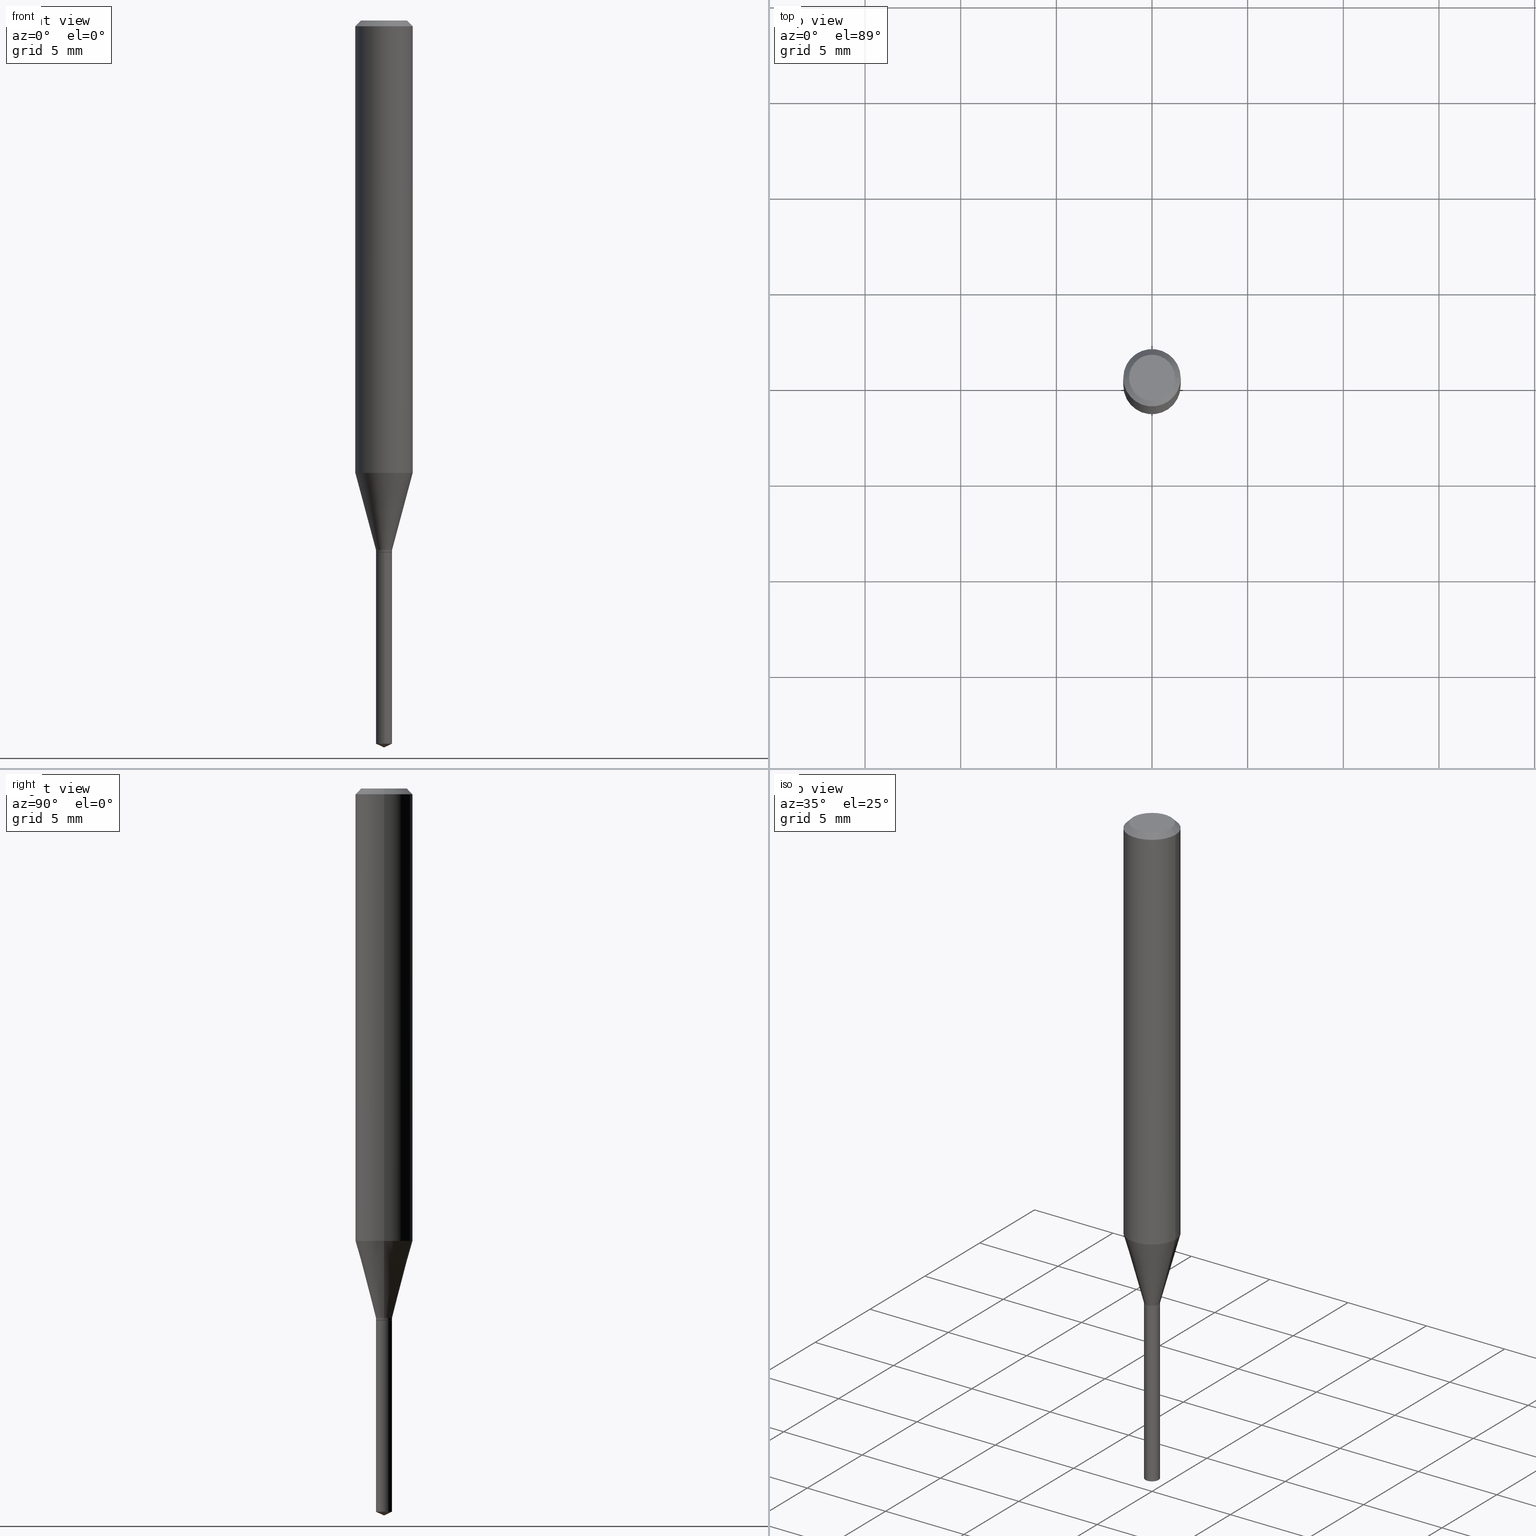
[diagram: canonical four-view strip — front | top / right | iso, engineering-drawing reading convention]
A machine part, canonical four-view strip (front | top / right | iso — engineering-drawing reading convention). The complete STEP part file that produces these views, byte-faithful:
ISO-10303-21;
HEADER;
FILE_DESCRIPTION (( 'STEP AP203' ),
    '1' );
FILE_NAME ('08310.STEP',
    '2024-04-24T14:14:55',
    ( '' ),
    ( '' ),
    'SwSTEP 2.0',
    'SolidWorks 2023',
    '' );
FILE_SCHEMA (( 'CONFIG_CONTROL_DESIGN' ));
ENDSEC;

DATA;
#1 = DIRECTION ( 'NONE',  ( 1.000000000000000000, -6.982962677686268288E-15, 0.000000000000000000 ) ) ;
#2 = APPROVAL ( #225, 'UNSPECIFIED' ) ;
#3 = ORGANIZATION ( 'UNSPECIFIED', 'UNSPECIFIED', '' ) ;
#4 = CIRCLE ( 'NONE', #134, 0.04724000000000000421 ) ;
#5 = CARTESIAN_POINT ( 'NONE',  ( 0.05904999999999999832, -4.535783407291118600E-16, -0.01181000000000006871 ) ) ;
#6 = LOCAL_TIME ( 10, 14, 55.00000000000000000, #240 ) ;
#7 = FACE_OUTER_BOUND ( 'NONE', #132, .T. ) ;
#8 = ORIENTED_EDGE ( 'NONE', *, *, #353, .F. ) ;
#9 = COORDINATED_UNIVERSAL_TIME_OFFSET ( 5, 0, .BEHIND. ) ;
#10 = VERTEX_POINT ( 'NONE', #218 ) ;
#11 = FACE_OUTER_BOUND ( 'NONE', #466, .T. ) ;
#12 = VERTEX_POINT ( 'NONE', #72 ) ;
#13 = PERSON_AND_ORGANIZATION ( #419, #3 ) ;
#14 = DIRECTION ( 'NONE',  ( -2.445468806185136597E-29, 3.491481338843145583E-15, 1.000000000000000000 ) ) ;
#15 = EDGE_LOOP ( 'NONE', ( #52, #312, #111 ) ) ;
#16 = VERTEX_POINT ( 'NONE', #337 ) ;
#17 = EDGE_CURVE ( 'NONE', #381, #122, #156, .T. ) ;
#18 = ORIENTED_EDGE ( 'NONE', *, *, #424, .T. ) ;
#19 = CARTESIAN_POINT ( 'NONE',  ( -0.05904999999999999832, 3.711095515056362547E-16, -0.01181000000000006871 ) ) ;
#20 = AXIS2_PLACEMENT_3D ( 'NONE', #68, #125, #269 ) ;
#21 = DIRECTION ( 'NONE',  ( -2.445468806185136597E-29, 3.491481338843145583E-15, 1.000000000000000000 ) ) ;
#22 = EDGE_LOOP ( 'NONE', ( #236, #323, #171, #389 ) ) ;
#23 = FACE_OUTER_BOUND ( 'NONE', #469, .T. ) ;
#24 = CARTESIAN_POINT ( 'NONE',  ( 2.676565608369632355E-29, -3.821426325363822773E-15, -1.094500000000000028 ) ) ;
#25 = CARTESIAN_POINT ( 'NONE',  ( 2.888098660104663328E-31, -4.123439461173779030E-17, -0.01181000000000006871 ) ) ;
#26 = APPLICATION_CONTEXT ( 'configuration controlled 3d designs of mechanical parts and assemblies' ) ;
#27 = CYLINDRICAL_SURFACE ( 'NONE', #464, 0.05905000000000005383 ) ;
#28 = DIRECTION ( 'NONE',  ( -2.445468806185136877E-29, 3.491481338843145188E-15, 1.000000000000000000 ) ) ;
#29 = ADVANCED_FACE ( 'NONE', ( #11 ), #115, .T. ) ;
#30 = EDGE_CURVE ( 'NONE', #327, #12, #407, .T. ) ;
#31 = DIRECTION ( 'NONE',  ( 1.000000000000000000, -6.982962677686268288E-15, 4.876176775795936353E-29 ) ) ;
#32 = DIRECTION ( 'NONE',  ( 6.439704144417024831E-15, 0.9063077870366513800, 0.4226182617406963327 ) ) ;
#33 = VERTEX_POINT ( 'NONE', #462 ) ;
#34 = DIRECTION ( 'NONE',  ( -2.445468806185136597E-29, 3.491481338843145583E-15, 1.000000000000000000 ) ) ;
#35 = AXIS2_PLACEMENT_3D ( 'NONE', #272, #475, #481 ) ;
#36 = ADVANCED_FACE ( 'NONE', ( #461 ), #259, .T. ) ;
#37 = DIRECTION ( 'NONE',  ( -6.982962677686267499E-15, -1.000000000000000000, 3.520397390770469253E-15 ) ) ;
#38 = AXIS2_PLACEMENT_3D ( 'NONE', #431, #442, #167 ) ;
#39 = ORIENTED_EDGE ( 'NONE', *, *, #353, .T. ) ;
#40 = CARTESIAN_POINT ( 'NONE',  ( 0.05904999999999999832, -4.463468013801466955E-16, -0.01181000000000006871 ) ) ;
#41 = FACE_OUTER_BOUND ( 'NONE', #146, .T. ) ;
#42 = CIRCLE ( 'NONE', #114, 0.01654999999999999874 ) ;
#43 = VECTOR ( 'NONE', #386, 39.37007874015748143 ) ;
#44 = CARTESIAN_POINT ( 'NONE',  ( 2.676565608369631794E-29, -3.821426325363822773E-15, -1.094499999999999806 ) ) ;
#45 = EDGE_CURVE ( 'NONE', #320, #86, #117, .T. ) ;
#46 = DIRECTION ( 'NONE',  ( 1.000000000000000000, -6.982962677686263555E-15, 0.000000000000000000 ) ) ;
#47 = DIRECTION ( 'NONE',  ( -2.445468806185136597E-29, 3.491481338843145583E-15, 1.000000000000000000 ) ) ;
#48 = AXIS2_PLACEMENT_3D ( 'NONE', #434, #473, #238 ) ;
#49 = EDGE_CURVE ( 'NONE', #264, #16, #367, .T. ) ;
#50 = AXIS2_PLACEMENT_3D ( 'NONE', #44, #187, #335 ) ;
#51 = ORIENTED_EDGE ( 'NONE', *, *, #331, .T. ) ;
#52 = ORIENTED_EDGE ( 'NONE', *, *, #246, .F. ) ;
#53 = AXIS2_PLACEMENT_3D ( 'NONE', #296, #375, #46 ) ;
#54 = AXIS2_PLACEMENT_3D ( 'NONE', #24, #360, #205 ) ;
#55 = PRODUCT_DEFINITION ( 'UNKNOWN', '', #90, #370 ) ;
#56 = CARTESIAN_POINT ( 'NONE',  ( 2.664338264338706022E-29, -3.803968918669606949E-15, -1.089499999999999913 ) ) ;
#57 = VERTEX_POINT ( 'NONE', #262 ) ;
#58 = APPLICATION_PROTOCOL_DEFINITION ( 'international standard', 'config_control_design', 1994, #26 ) ;
#59 = CARTESIAN_POINT ( 'NONE',  ( 3.658653776152657051E-29, -5.223622565778476142E-15, -1.496099999999999985 ) ) ;
#60 = ORIENTED_EDGE ( 'NONE', *, *, #97, .F. ) ;
#61 = DIRECTION ( 'NONE',  ( 1.000000000000000000, -6.982962677686268288E-15, 0.000000000000000000 ) ) ;
#62 = CARTESIAN_POINT ( 'NONE',  ( 0.01654999999999999874, -3.919536950985314429E-15, -1.089499999999999913 ) ) ;
#63 = EDGE_CURVE ( 'NONE', #232, #12, #257, .T. ) ;
#64 = AXIS2_PLACEMENT_3D ( 'NONE', #403, #34, #430 ) ;
#65 = AXIS2_PLACEMENT_3D ( 'NONE', #293, #452, #220 ) ;
#66 = CARTESIAN_POINT ( 'NONE',  ( 0.01654999999999999527, -1.155680323157077024E-16, 8.070072563942271930E-31 ) ) ;
#67 = CARTESIAN_POINT ( 'NONE',  ( 2.676565608369631794E-29, -3.821426325363822773E-15, -1.094499999999999806 ) ) ;
#68 = CARTESIAN_POINT ( 'NONE',  ( 4.132873053354867254E-48, -5.900647395337818946E-34, -1.690012582823346072E-19 ) ) ;
#69 = LINE ( 'NONE', #363, #120 ) ;
#70 = CYLINDRICAL_SURFACE ( 'NONE', #488, 0.01654999999999999527 ) ;
#71 = CIRCLE ( 'NONE', #387, 0.01604999999999999830 ) ;
#72 = CARTESIAN_POINT ( 'NONE',  ( -0.01654999999999999527, -3.694229928913707069E-15, -1.093999999999999861 ) ) ;
#73 = CALENDAR_DATE ( 2024, 24, 4 ) ;
#74 = CARTESIAN_POINT ( 'NONE',  ( -0.01654999999999999874, -3.686374095901309909E-15, -1.089499999999999913 ) ) ;
#75 = EDGE_CURVE ( 'NONE', #445, #327, #76, .T. ) ;
#76 = LINE ( 'NONE', #418, #253 ) ;
#77 = ADVANCED_FACE ( 'NONE', ( #219 ), #380, .T. ) ;
#78 = CC_DESIGN_APPROVAL ( #2, ( #90 ) ) ;
#79 = AXIS2_PLACEMENT_3D ( 'NONE', #369, #14, #408 ) ;
#80 = ORIENTED_EDGE ( 'NONE', *, *, #277, .T. ) ;
#81 = DATE_TIME_ROLE ( 'creation_date' ) ;
#82 = DIRECTION ( 'NONE',  ( -0.7071067811864237829, 7.493145998869907665E-15, 0.7071067811866712516 ) ) ;
#83 = EDGE_CURVE ( 'NONE', #381, #264, #435, .T. ) ;
#84 = VECTOR ( 'NONE', #490, 39.37007874015748143 ) ;
#85 = CIRCLE ( 'NONE', #48, 0.05905000000000010935 ) ;
#86 = VERTEX_POINT ( 'NONE', #5 ) ;
#87 = ORIENTED_EDGE ( 'NONE', *, *, #344, .T. ) ;
#88 = LENGTH_MEASURE_WITH_UNIT ( LENGTH_MEASURE( 0.02539999999999999897 ), #451 );
#89 = CARTESIAN_POINT ( 'NONE',  ( -0.05905000000000005383, 4.195754854663395423E-16, -2.904631170795524694E-30 ) ) ;
#90 = PRODUCT_DEFINITION_FORMATION_WITH_SPECIFIED_SOURCE ( 'ANY', '', #157, .NOT_KNOWN. ) ;
#91 = PERSON_AND_ORGANIZATION ( #419, #3 ) ;
#92 = DIRECTION ( 'NONE',  ( 1.000000000000000000, -6.982962677686266711E-15, 0.000000000000000000 ) ) ;
#93 = ORIENTED_EDGE ( 'NONE', *, *, #277, .F. ) ;
#94 = ORIENTED_EDGE ( 'NONE', *, *, #121, .F. ) ;
#95 = DIRECTION ( 'NONE',  ( -2.445468806185136597E-29, 3.491481338843145583E-15, 1.000000000000000000 ) ) ;
#96 = DIRECTION ( 'NONE',  ( -2.445468806185136597E-29, 3.491481338843145583E-15, 1.000000000000000000 ) ) ;
#97 = EDGE_CURVE ( 'NONE', #33, #86, #254, .T. ) ;
#98 = CARTESIAN_POINT ( 'NONE',  ( 3.658653776152655930E-29, -5.223622565778476142E-15, -1.496099999999999985 ) ) ;
#99 = FACE_OUTER_BOUND ( 'NONE', #22, .T. ) ;
#100 = CLOSED_SHELL ( 'NONE', ( #404, #287, #131, #149, #133 ) ) ;
#101 = DIRECTION ( 'NONE',  ( -2.445460715294871217E-29, 3.491492925458510144E-15, 1.000000000000000000 ) ) ;
#102 = DATE_AND_TIME ( #73, #355 ) ;
#103 = CARTESIAN_POINT ( 'NONE',  ( 0.05905000000000005383, -4.123439461173744271E-16, 2.879382386107502672E-30 ) ) ;
#104 = DIRECTION ( 'NONE',  ( 1.000000000000000000, -6.982962677686266711E-15, 4.876176775795935793E-29 ) ) ;
#105 = CC_DESIGN_PERSON_AND_ORGANIZATION_ASSIGNMENT ( #271, #124, ( #90 ) ) ;
#106 = FACE_OUTER_BOUND ( 'NONE', #15, .T. ) ;
#107 = AXIS2_PLACEMENT_3D ( 'NONE', #487, #177, #250 ) ;
#108 = CARTESIAN_POINT ( 'NONE',  ( 1.175948227683330073E-16, 0.01654999999999617541, -1.094499999999999806 ) ) ;
#109 = ADVANCED_FACE ( 'NONE', ( #41 ), #291, .F. ) ;
#110 = CARTESIAN_POINT ( 'NONE',  ( -9.261931828548885815E-28, 1.322367415117763772E-13, 37.87397874015748300 ) ) ;
#111 = ORIENTED_EDGE ( 'NONE', *, *, #410, .F. ) ;
#112 = CARTESIAN_POINT ( 'NONE',  ( -0.01604999999999999830, -3.707384216274326632E-15, -1.094500000000000028 ) ) ;
#113 = DATE_AND_TIME ( #298, #372 ) ;
#114 = AXIS2_PLACEMENT_3D ( 'NONE', #241, #345, #397 ) ;
#115 = CONICAL_SURFACE ( 'NONE', #283, 0.05904999999999999832, 0.7853981633974452814 ) ;
#116 = AXIS2_PLACEMENT_3D ( 'NONE', #319, #349, #444 ) ;
#117 = LINE ( 'NONE', #40, #486 ) ;
#118 = ORIENTED_EDGE ( 'NONE', *, *, #412, .F. ) ;
#119 = ORIENTED_EDGE ( 'NONE', *, *, #344, .F. ) ;
#120 = VECTOR ( 'NONE', #32, 39.37007874015748854 ) ;
#121 = EDGE_CURVE ( 'NONE', #122, #16, #417, .T. ) ;
#122 = VERTEX_POINT ( 'NONE', #371 ) ;
#123 = EDGE_LOOP ( 'NONE', ( #346, #118, #310, #432 ) ) ;
#124 = PERSON_AND_ORGANIZATION_ROLE ( 'design_supplier' ) ;
#125 = DIRECTION ( 'NONE',  ( 2.438088387897960049E-29, -3.491481338843145188E-15, -1.000000000000000000 ) ) ;
#126 = ORIENTED_EDGE ( 'NONE', *, *, #190, .T. ) ;
#127 = DIRECTION ( 'NONE',  ( 0.000000000000000000, 0.000000000000000000, 1.000000000000000000 ) ) ;
#128 = DIRECTION ( 'NONE',  ( 1.000000000000000000, -6.982962677686266711E-15, 4.876176775795935793E-29 ) ) ;
#129 = VERTEX_POINT ( 'NONE', #108 ) ;
#130 = FACE_OUTER_BOUND ( 'NONE', #395, .T. ) ;
#131 = ADVANCED_FACE ( 'NONE', ( #106 ), #374, .T. ) ;
#132 = EDGE_LOOP ( 'NONE', ( #8, #263, #303, #379 ) ) ;
#133 = ADVANCED_FACE ( 'NONE', ( #256 ), #413, .F. ) ;
#134 = AXIS2_PLACEMENT_3D ( 'NONE', #242, #357, #280 ) ;
#135 = CARTESIAN_POINT ( 'NONE',  ( 8.265746106709734507E-48, -1.180129479067563789E-33, -3.380025165646692144E-19 ) ) ;
#136 = COORDINATED_UNIVERSAL_TIME_OFFSET ( 5, 0, .BEHIND. ) ;
#137 = LINE ( 'NONE', #59, #43 ) ;
#138 = ORIENTED_EDGE ( 'NONE', *, *, #294, .F. ) ;
#139 = CARTESIAN_POINT ( 'NONE',  ( -0.01604999999999999830, -3.704734989100215431E-15, -1.094500000000000028 ) ) ;
#140 = DIRECTION ( 'NONE',  ( -2.445468806185136597E-29, 3.491481338843145583E-15, 1.000000000000000000 ) ) ;
#141 = CARTESIAN_POINT ( 'NONE',  ( 0.000000000000000000, 0.000000000000000000, 0.000000000000000000 ) ) ;
#142 = AXIS2_PLACEMENT_3D ( 'NONE', #328, #47, #1 ) ;
#143 = VECTOR ( 'NONE', #234, 39.37007874015748143 ) ;
#144 = CARTESIAN_POINT ( 'NONE',  ( -0.01654999999999999527, 1.175948227682965472E-16, -8.140837574371866824E-31 ) ) ;
#145 = CC_DESIGN_PERSON_AND_ORGANIZATION_ASSIGNMENT ( #318, #471, ( #235 ) ) ;
#146 = EDGE_LOOP ( 'NONE', ( #239, #437 ) ) ;
#147 = CARTESIAN_POINT ( 'NONE',  ( -9.261931828548885815E-28, 1.322367415117763772E-13, 37.87397874015748300 ) ) ;
#148 = DIRECTION ( 'NONE',  ( -0.2588190451025213501, 5.211531920934551042E-15, 0.9659258262890682012 ) ) ;
#149 = ADVANCED_FACE ( 'NONE', ( #7 ), #155, .T. ) ;
#150 = APPROVAL_PERSON_ORGANIZATION ( #13, #2, #340 ) ;
#151 = APPROVAL_DATE_TIME ( #102, #398 ) ;
#152 = AXIS2_PLACEMENT_3D ( 'NONE', #211, #406, #104 ) ;
#153 = DIRECTION ( 'NONE',  ( 0.7071067811865453523, -7.319954787623248157E-15, -0.7071067811865496822 ) ) ;
#154 = PERSON_AND_ORGANIZATION_ROLE ( 'creator' ) ;
#155 = CYLINDRICAL_SURFACE ( 'NONE', #285, 0.01654999999999999874 ) ;
#156 = LINE ( 'NONE', #255, #339 ) ;
#157 = PRODUCT ( '08310', '08310', '', ( #433 ) ) ;
#158 = VECTOR ( 'NONE', #248, 39.37007874015748143 ) ;
#159 = EDGE_LOOP ( 'NONE', ( #196, #347, #94, #210 ) ) ;
#160 = ORIENTED_EDGE ( 'NONE', *, *, #409, .T. ) ;
#161 = ADVANCED_FACE ( 'NONE', ( #276 ), #179, .T. ) ;
#162 = ADVANCED_FACE ( 'NONE', ( #130 ), #70, .T. ) ;
#163 = APPROVAL_DATE_TIME ( #348, #448 ) ;
#164 = ORIENTED_EDGE ( 'NONE', *, *, #246, .T. ) ;
#165 = LINE ( 'NONE', #19, #84 ) ;
#166 = VERTEX_POINT ( 'NONE', #98 ) ;
#167 = DIRECTION ( 'NONE',  ( 1.000000000000000000, -6.982962677686266711E-15, 0.000000000000000000 ) ) ;
#168 = CARTESIAN_POINT ( 'NONE',  ( -0.04724000000000000421, 3.504923541997677355E-16, -3.380025165670481712E-19 ) ) ;
#169 = APPROVAL_DATE_TIME ( #173, #2 ) ;
#170 = CARTESIAN_POINT ( 'NONE',  ( 3.639790053301312360E-29, -5.196664665556151935E-15, -1.488382608257534656 ) ) ;
#171 = ORIENTED_EDGE ( 'NONE', *, *, #83, .F. ) ;
#172 = VECTOR ( 'NONE', #175, 39.37007874015748143 ) ;
#173 = DATE_AND_TIME ( #396, #6 ) ;
#174 = FACE_OUTER_BOUND ( 'NONE', #405, .T. ) ;
#175 = DIRECTION ( 'NONE',  ( -2.445468806185136877E-29, 3.491481338843145188E-15, 1.000000000000000000 ) ) ;
#176 = CARTESIAN_POINT ( 'NONE',  ( 0.01604999999999999830, -3.933502876340687247E-15, -1.094500000000000028 ) ) ;
#177 = DIRECTION ( 'NONE',  ( -2.445460715294871217E-29, 3.491492925458510144E-15, 1.000000000000000000 ) ) ;
#178 = ADVANCED_FACE ( 'NONE', ( #436 ), #316, .T. ) ;
#179 = CYLINDRICAL_SURFACE ( 'NONE', #152, 0.05905000000000005383 ) ;
#180 = VECTOR ( 'NONE', #484, 39.37007874015748143 ) ;
#181 = DIRECTION ( 'NONE',  ( -6.982962677686266711E-15, -1.000000000000000000, 0.000000000000000000 ) ) ;
#182 = DIRECTION ( 'NONE',  ( -1.000000000000000000, 6.982962677686266711E-15, 0.000000000000000000 ) ) ;
#183 = DIRECTION ( 'NONE',  ( 1.000000000000000000, -6.982962677686267499E-15, 0.000000000000000000 ) ) ;
#184 = CC_DESIGN_APPROVAL ( #398, ( #55 ) ) ;
#185 = CIRCLE ( 'NONE', #260, 0.01654999999999999527 ) ;
#186 = APPROVAL_STATUS ( 'not_yet_approved' ) ;
#187 = DIRECTION ( 'NONE',  ( 2.445460715294871217E-29, -3.491492925458510144E-15, -1.000000000000000000 ) ) ;
#188 = ORIENTED_EDGE ( 'NONE', *, *, #412, .T. ) ;
#189 = CARTESIAN_POINT ( 'NONE',  ( 2.664338264338706022E-29, -3.803968918669606949E-15, -1.089499999999999913 ) ) ;
#190 = EDGE_CURVE ( 'NONE', #57, #129, #423, .T. ) ;
#191 = DIRECTION ( 'NONE',  ( 2.445468806185136597E-29, -3.491481338843145583E-15, -1.000000000000000000 ) ) ;
#192 = LOCAL_TIME ( 10, 14, 55.00000000000000000, #136 ) ;
#193 = VECTOR ( 'NONE', #148, 39.37007874015747433 ) ;
#194 = EDGE_CURVE ( 'NONE', #320, #258, #4, .T. ) ;
#195 = AXIS2_PLACEMENT_3D ( 'NONE', #110, #329, #252 ) ;
#196 = ORIENTED_EDGE ( 'NONE', *, *, #83, .T. ) ;
#197 = APPLICATION_PROTOCOL_DEFINITION ( 'international standard', 'config_control_design', 1994, #302 ) ;
#198 = EDGE_CURVE ( 'NONE', #12, #264, #273, .T. ) ;
#199 = DIRECTION ( 'NONE',  ( 1.000000000000000000, -6.982962677686266711E-15, 0.000000000000000000 ) ) ;
#200 = ORIENTED_EDGE ( 'NONE', *, *, #63, .F. ) ;
#201 = FACE_OUTER_BOUND ( 'NONE', #315, .T. ) ;
#202 = EDGE_LOOP ( 'NONE', ( #188, #388 ) ) ;
#203 = FACE_OUTER_BOUND ( 'NONE', #228, .T. ) ;
#204 = CARTESIAN_POINT ( 'NONE',  ( 0.04724000000000000421, -3.852183633974369345E-16, -3.380025165621689721E-19 ) ) ;
#205 = DIRECTION ( 'NONE',  ( 1.000000000000000000, -6.982962677686263555E-15, 0.000000000000000000 ) ) ;
#206 = AXIS2_PLACEMENT_3D ( 'NONE', #170, #101, #314 ) ;
#207 = AXIS2_PLACEMENT_3D ( 'NONE', #189, #378, #338 ) ;
#208 = APPROVAL_STATUS ( 'not_yet_approved' ) ;
#209 = DIRECTION ( 'NONE',  ( 1.000000000000000000, -6.982962677686266711E-15, 4.876185090822587894E-29 ) ) ;
#210 = ORIENTED_EDGE ( 'NONE', *, *, #17, .F. ) ;
#211 = CARTESIAN_POINT ( 'NONE',  ( 0.000000000000000000, 0.000000000000000000, 0.000000000000000000 ) ) ;
#212 = EDGE_CURVE ( 'NONE', #122, #86, #286, .T. ) ;
#213 = CC_DESIGN_PERSON_AND_ORGANIZATION_ASSIGNMENT ( #261, #154, ( #55 ) ) ;
#214 =( CONVERSION_BASED_UNIT ( 'INCH', #88 ) LENGTH_UNIT ( ) NAMED_UNIT ( #361 ) );
#215 = CIRCLE ( 'NONE', #64, 0.01604999999999999830 ) ;
#216 = AXIS2_PLACEMENT_3D ( 'NONE', #414, #191, #182 ) ;
#217 = APPROVAL_ROLE ( '' ) ;
#218 = CARTESIAN_POINT ( 'NONE',  ( -1.155680323156712916E-16, -0.01655000000000519597, -1.488382608257534656 ) ) ;
#219 = FACE_OUTER_BOUND ( 'NONE', #123, .T. ) ;
#220 = DIRECTION ( 'NONE',  ( 1.000000000000000000, -6.982962677686265922E-15, 4.876176775795935793E-29 ) ) ;
#221 = AXIS2_PLACEMENT_3D ( 'NONE', #147, #326, #37 ) ;
#222 = DIRECTION ( 'NONE',  ( -1.000000000000000000, 6.982962677686266711E-15, 0.000000000000000000 ) ) ;
#223 = CC_DESIGN_PERSON_AND_ORGANIZATION_ASSIGNMENT ( #91, #390, ( #157 ) ) ;
#224 = DIRECTION ( 'NONE',  ( 0.7071067811864237829, -2.468850131080960568E-15, 0.7071067811866712516 ) ) ;
#225 = APPROVAL_STATUS ( 'not_yet_approved' ) ;
#226 = EDGE_CURVE ( 'NONE', #445, #232, #71, .T. ) ;
#227 = AXIS2_PLACEMENT_3D ( 'NONE', #25, #391, #92 ) ;
#228 = EDGE_LOOP ( 'NONE', ( #420, #164, #138 ) ) ;
#229 = ORIENTED_EDGE ( 'NONE', *, *, #368, .T. ) ;
#230 =( NAMED_UNIT ( * ) PLANE_ANGLE_UNIT ( ) SI_UNIT ( $, .RADIAN. ) );
#231 = PERSON_AND_ORGANIZATION ( #419, #3 ) ;
#232 = VERTEX_POINT ( 'NONE', #139 ) ;
#233 =( NAMED_UNIT ( * ) SI_UNIT ( $, .STERADIAN. ) SOLID_ANGLE_UNIT ( ) );
#234 = DIRECTION ( 'NONE',  ( -2.445460715294871217E-29, 3.491492925458510144E-15, 1.000000000000000000 ) ) ;
#235 = SECURITY_CLASSIFICATION ( '', '', #243 ) ;
#236 = ORIENTED_EDGE ( 'NONE', *, *, #30, .T. ) ;
#237 = CIRCLE ( 'NONE', #38, 0.01654999999999999874 ) ;
#238 = DIRECTION ( 'NONE',  ( 1.000000000000000000, -6.982962677686267499E-15, 0.000000000000000000 ) ) ;
#239 = ORIENTED_EDGE ( 'NONE', *, *, #226, .F. ) ;
#240 = COORDINATED_UNIVERSAL_TIME_OFFSET ( 5, 0, .BEHIND. ) ;
#241 = CARTESIAN_POINT ( 'NONE',  ( 2.676565608369631794E-29, -3.821426325363822773E-15, -1.094499999999999806 ) ) ;
#242 = CARTESIAN_POINT ( 'NONE',  ( 8.265746106709734507E-48, -1.180129479067563789E-33, -3.380025165646692144E-19 ) ) ;
#243 = SECURITY_CLASSIFICATION_LEVEL ( 'unclassified' ) ;
#244 = CARTESIAN_POINT ( 'NONE',  ( 0.000000000000000000, 0.000000000000000000, 0.000000000000000000 ) ) ;
#245 = DIRECTION ( 'NONE',  ( -6.982962677686266711E-15, -1.000000000000000000, 0.000000000000000000 ) ) ;
#246 = EDGE_CURVE ( 'NONE', #166, #421, #69, .T. ) ;
#247 = AXIS2_PLACEMENT_3D ( 'NONE', #489, #365, #181 ) ;
#248 = DIRECTION ( 'NONE',  ( -2.445468806185136877E-29, 3.491481338843145188E-15, 1.000000000000000000 ) ) ;
#249 = DIRECTION ( 'NONE',  ( -2.445468806185136597E-29, 3.491481338843145583E-15, 1.000000000000000000 ) ) ;
#250 = DIRECTION ( 'NONE',  ( -6.982962677686266711E-15, -1.000000000000000000, 0.000000000000000000 ) ) ;
#251 = DIRECTION ( 'NONE',  ( -2.445460715294871217E-29, 3.491492925458510144E-15, 1.000000000000000000 ) ) ;
#252 = DIRECTION ( 'NONE',  ( -6.982962677686267499E-15, -1.000000000000000000, 3.520397390770469253E-15 ) ) ;
#253 = VECTOR ( 'NONE', #224, 39.37007874015748143 ) ;
#254 = CIRCLE ( 'NONE', #79, 0.05904999999999999832 ) ;
#255 = CARTESIAN_POINT ( 'NONE',  ( 0.01654999999999999874, -3.919536950985314429E-15, -1.089499999999999913 ) ) ;
#256 = FACE_OUTER_BOUND ( 'NONE', #383, .T. ) ;
#257 = LINE ( 'NONE', #112, #480 ) ;
#258 = VERTEX_POINT ( 'NONE', #168 ) ;
#259 = CONICAL_SURFACE ( 'NONE', #53, 0.01604999999999999830, 0.7853981633972733079 ) ;
#260 = AXIS2_PLACEMENT_3D ( 'NONE', #477, #95, #61 ) ;
#261 = PERSON_AND_ORGANIZATION ( #419, #3 ) ;
#262 = CARTESIAN_POINT ( 'NONE',  ( -1.155680323156809305E-16, -0.01655000000000381860, -1.094499999999999806 ) ) ;
#263 = ORIENTED_EDGE ( 'NONE', *, *, #410, .T. ) ;
#264 = VERTEX_POINT ( 'NONE', #313 ) ;
#265 = APPROVAL_PERSON_ORGANIZATION ( #231, #448, #351 ) ;
#266 = ORIENTED_EDGE ( 'NONE', *, *, #468, .T. ) ;
#267 = PERSON_AND_ORGANIZATION ( #419, #3 ) ;
#268 = ORIENTED_EDGE ( 'NONE', *, *, #45, .T. ) ;
#269 = DIRECTION ( 'NONE',  ( -1.000000000000000000, 6.982962677686265922E-15, -4.876176775795935793E-29 ) ) ;
#270 = ORIENTED_EDGE ( 'NONE', *, *, #121, .T. ) ;
#271 = PERSON_AND_ORGANIZATION ( #419, #3 ) ;
#272 = CARTESIAN_POINT ( 'NONE',  ( 2.676565608369631794E-29, -3.821426325363822773E-15, -1.094499999999999806 ) ) ;
#273 = LINE ( 'NONE', #144, #332 ) ;
#274 = CIRCLE ( 'NONE', #227, 0.05904999999999999832 ) ;
#275 = LINE ( 'NONE', #66, #158 ) ;
#276 = FACE_OUTER_BOUND ( 'NONE', #362, .T. ) ;
#277 = EDGE_CURVE ( 'NONE', #12, #327, #185, .T. ) ;
#278 = CALENDAR_DATE ( 2024, 24, 4 ) ;
#279 = CARTESIAN_POINT ( 'NONE',  ( 0.01654999999999999527, -3.935248617010108750E-15, -1.093999999999999861 ) ) ;
#280 = DIRECTION ( 'NONE',  ( 1.000000000000000000, -6.982962677686266711E-15, 4.876185090822587894E-29 ) ) ;
#281 = FACE_OUTER_BOUND ( 'NONE', #202, .T. ) ;
#282 =( GEOMETRIC_REPRESENTATION_CONTEXT ( 3 ) GLOBAL_UNCERTAINTY_ASSIGNED_CONTEXT ( ( #377 ) ) GLOBAL_UNIT_ASSIGNED_CONTEXT ( ( #214, #230, #233 ) ) REPRESENTATION_CONTEXT ( 'NONE', 'WORKASPACE' ) );
#283 = AXIS2_PLACEMENT_3D ( 'NONE', #299, #411, #222 ) ;
#284 = CARTESIAN_POINT ( 'NONE',  ( 0.000000000000000000, 0.000000000000000000, 0.000000000000000000 ) ) ;
#285 = AXIS2_PLACEMENT_3D ( 'NONE', #67, #394, #245 ) ;
#286 = LINE ( 'NONE', #103, #172 ) ;
#287 = ADVANCED_FACE ( 'NONE', ( #203 ), #470, .T. ) ;
#288 = ADVANCED_BREP_SHAPE_REPRESENTATION ( '08310', ( #295, #297, #300 ), #282 ) ;
#289 = DIRECTION ( 'NONE',  ( 0.2588190451025213501, 1.565188264969621968E-15, 0.9659258262890682012 ) ) ;
#290 = PRODUCT_RELATED_PRODUCT_CATEGORY ( 'detail', '', ( #157 ) ) ;
#291 = PLANE ( 'NONE',  #65 ) ;
#292 = APPROVAL_PERSON_ORGANIZATION ( #449, #398, #217 ) ;
#293 = CARTESIAN_POINT ( 'NONE',  ( -3.827830553549944292E-29, -1.313609183647141383E-14, -1.094500000000000028 ) ) ;
#294 = EDGE_CURVE ( 'NONE', #10, #421, #457, .T. ) ;
#295 = MANIFOLD_SOLID_BREP ( 'Body-Move/Copy2[1]', #100 ) ;
#296 = CARTESIAN_POINT ( 'NONE',  ( 2.676565608369632355E-29, -3.821426325363822773E-15, -1.094500000000000028 ) ) ;
#297 = MANIFOLD_SOLID_BREP ( 'Body-Move/Copy2[2]', #373 ) ;
#298 = CALENDAR_DATE ( 2024, 24, 4 ) ;
#299 = CARTESIAN_POINT ( 'NONE',  ( 2.888098660104663328E-31, -4.123439461173779030E-17, -0.01181000000000006871 ) ) ;
#300 = AXIS2_PLACEMENT_3D ( 'NONE', #284, #127, #324 ) ;
#301 = AXIS2_PLACEMENT_3D ( 'NONE', #56, #140, #199 ) ;
#302 = APPLICATION_CONTEXT ( 'configuration controlled 3d designs of mechanical parts and assemblies' ) ;
#303 = ORIENTED_EDGE ( 'NONE', *, *, #458, .T. ) ;
#304 = EDGE_CURVE ( 'NONE', #166, #10, #137, .T. ) ;
#305 = ORIENTED_EDGE ( 'NONE', *, *, #458, .F. ) ;
#306 = ORIENTED_EDGE ( 'NONE', *, *, #409, .F. ) ;
#307 = DATE_AND_TIME ( #428, #192 ) ;
#308 = PLANE ( 'NONE',  #20 ) ;
#309 = ADVANCED_FACE ( 'NONE', ( #399 ), #447, .T. ) ;
#310 = ORIENTED_EDGE ( 'NONE', *, *, #454, .T. ) ;
#311 = CYLINDRICAL_SURFACE ( 'NONE', #35, 0.01654999999999999874 ) ;
#312 = ORIENTED_EDGE ( 'NONE', *, *, #304, .T. ) ;
#313 = CARTESIAN_POINT ( 'NONE',  ( -0.01654999999999999874, -3.694229928913707069E-15, -1.089499999999999913 ) ) ;
#314 = DIRECTION ( 'NONE',  ( -6.982962677686266711E-15, -1.000000000000000000, 0.000000000000000000 ) ) ;
#315 = EDGE_LOOP ( 'NONE', ( #472, #229, #476, #306 ) ) ;
#316 = CONICAL_SURFACE ( 'NONE', #54, 0.01604999999999999830, 0.7853981633972733079 ) ;
#317 = EDGE_CURVE ( 'NONE', #327, #381, #275, .T. ) ;
#318 = PERSON_AND_ORGANIZATION ( #419, #3 ) ;
#319 = CARTESIAN_POINT ( 'NONE',  ( 2.664338264338706022E-29, -3.803968918669606949E-15, -1.089499999999999913 ) ) ;
#320 = VERTEX_POINT ( 'NONE', #204 ) ;
#321 = DIRECTION ( 'NONE',  ( 1.000000000000000000, -6.982962677686263555E-15, 0.000000000000000000 ) ) ;
#322 = CARTESIAN_POINT ( 'NONE',  ( 0.000000000000000000, 0.000000000000000000, 0.000000000000000000 ) ) ;
#323 = ORIENTED_EDGE ( 'NONE', *, *, #198, .T. ) ;
#324 = DIRECTION ( 'NONE',  ( 1.000000000000000000, 0.000000000000000000, 0.000000000000000000 ) ) ;
#325 = CONICAL_SURFACE ( 'NONE', #116, 0.01654999999999999874, 0.2617993877991500740 ) ;
#326 = DIRECTION ( 'NONE',  ( -2.445460715294871217E-29, 3.491492925458510144E-15, 1.000000000000000000 ) ) ;
#327 = VERTEX_POINT ( 'NONE', #279 ) ;
#328 = CARTESIAN_POINT ( 'NONE',  ( 2.675342873966538993E-29, -3.819680584694400481E-15, -1.093999999999999861 ) ) ;
#329 = DIRECTION ( 'NONE',  ( -2.445460715294871217E-29, 3.491492925458510144E-15, 1.000000000000000000 ) ) ;
#330 = CC_DESIGN_APPROVAL ( #448, ( #235 ) ) ;
#331 = EDGE_CURVE ( 'NONE', #86, #33, #274, .T. ) ;
#332 = VECTOR ( 'NONE', #28, 39.37007874015748143 ) ;
#333 = ADVANCED_FACE ( 'NONE', ( #281 ), #308, .F. ) ;
#334 = AXIS2_PLACEMENT_3D ( 'NONE', #135, #96, #209 ) ;
#335 = DIRECTION ( 'NONE',  ( 6.982962677686265922E-15, 1.000000000000000000, -3.491492925458510144E-15 ) ) ;
#336 = ORIENTED_EDGE ( 'NONE', *, *, #30, .F. ) ;
#337 = CARTESIAN_POINT ( 'NONE',  ( -0.05905000000000011628, -2.830602038818014515E-15, -0.9308878406783226422 ) ) ;
#338 = DIRECTION ( 'NONE',  ( 1.000000000000000000, -6.982962677686266711E-15, 0.000000000000000000 ) ) ;
#339 = VECTOR ( 'NONE', #289, 39.37007874015747433 ) ;
#340 = APPROVAL_ROLE ( '' ) ;
#341 = ORIENTED_EDGE ( 'NONE', *, *, #317, .T. ) ;
#342 = ADVANCED_FACE ( 'NONE', ( #201 ), #325, .T. ) ;
#343 = LOCAL_TIME ( 10, 14, 55.00000000000000000, #479 ) ;
#344 = EDGE_CURVE ( 'NONE', #16, #33, #356, .T. ) ;
#345 = DIRECTION ( 'NONE',  ( -2.445460715294871217E-29, 3.491492925458510144E-15, 1.000000000000000000 ) ) ;
#346 = ORIENTED_EDGE ( 'NONE', *, *, #45, .F. ) ;
#347 = ORIENTED_EDGE ( 'NONE', *, *, #49, .T. ) ;
#348 = DATE_AND_TIME ( #278, #343 ) ;
#349 = DIRECTION ( 'NONE',  ( -2.445468806185136597E-29, 3.491481338843145583E-15, 1.000000000000000000 ) ) ;
#350 = ORIENTED_EDGE ( 'NONE', *, *, #331, .F. ) ;
#351 = APPROVAL_ROLE ( '' ) ;
#352 = LINE ( 'NONE', #439, #143 ) ;
#353 = EDGE_CURVE ( 'NONE', #421, #129, #352, .T. ) ;
#354 = ORIENTED_EDGE ( 'NONE', *, *, #454, .F. ) ;
#356 = LINE ( 'NONE', #89, #180 ) ;
#355 = LOCAL_TIME ( 10, 14, 55.00000000000000000, #455 ) ;
#357 = DIRECTION ( 'NONE',  ( -2.445468806185136597E-29, 3.491481338843145583E-15, 1.000000000000000000 ) ) ;
#358 = ADVANCED_FACE ( 'NONE', ( #23 ), #27, .T. ) ;
#359 = CYLINDRICAL_SURFACE ( 'NONE', #443, 0.01654999999999999527 ) ;
#360 = DIRECTION ( 'NONE',  ( -2.445468806185136597E-29, 3.491481338843145583E-15, 1.000000000000000000 ) ) ;
#361 = DIMENSIONAL_EXPONENTS ( 1.000000000000000000, 0.000000000000000000, 0.000000000000000000, 0.000000000000000000, 0.000000000000000000, 0.000000000000000000, 0.000000000000000000 ) ;
#362 = EDGE_LOOP ( 'NONE', ( #119, #160, #416, #60 ) ) ;
#363 = CARTESIAN_POINT ( 'NONE',  ( 3.658671642415649744E-29, -5.223597202677443246E-15, -1.496099999999999985 ) ) ;
#364 = CARTESIAN_POINT ( 'NONE',  ( -1.155680323156809305E-16, -0.01655000000000381860, -1.094499999999999806 ) ) ;
#365 = DIRECTION ( 'NONE',  ( -2.445460715294871217E-29, 3.491492925458510144E-15, 1.000000000000000000 ) ) ;
#366 = ORIENTED_EDGE ( 'NONE', *, *, #194, .F. ) ;
#367 = LINE ( 'NONE', #74, #193 ) ;
#368 = EDGE_CURVE ( 'NONE', #264, #381, #237, .T. ) ;
#369 = CARTESIAN_POINT ( 'NONE',  ( 2.888098660104663328E-31, -4.123439461173779030E-17, -0.01181000000000006871 ) ) ;
#370 = DESIGN_CONTEXT ( 'detailed design', #26, 'design' ) ;
#371 = CARTESIAN_POINT ( 'NONE',  ( 0.05905000000000011628, -3.662521470401729717E-15, -0.9308878406783226422 ) ) ;
#372 = LOCAL_TIME ( 10, 14, 55.00000000000000000, #9 ) ;
#373 = CLOSED_SHELL ( 'NONE', ( #36, #29, #358, #309, #425, #162, #342, #161, #77, #333, #109, #178 ) ) ;
#374 = CONICAL_SURFACE ( 'NONE', #195, 84.42940631927396566, 1.134464013796314230 ) ;
#375 = DIRECTION ( 'NONE',  ( -2.445468806185136597E-29, 3.491481338843145583E-15, 1.000000000000000000 ) ) ;
#376 = ORIENTED_EDGE ( 'NONE', *, *, #294, .T. ) ;
#377 = UNCERTAINTY_MEASURE_WITH_UNIT (LENGTH_MEASURE( 1.000000000000000082E-05 ), #214, 'distance_accuracy_value', 'NONE');
#378 = DIRECTION ( 'NONE',  ( -2.445468806185136597E-29, 3.491481338843145583E-15, 1.000000000000000000 ) ) ;
#379 = ORIENTED_EDGE ( 'NONE', *, *, #424, .F. ) ;
#380 = CONICAL_SURFACE ( 'NONE', #216, 0.05904999999999999832, 0.7853981633974452814 ) ;
#381 = VERTEX_POINT ( 'NONE', #62 ) ;
#382 = CC_DESIGN_DATE_AND_TIME_ASSIGNMENT ( #307, #385, ( #235 ) ) ;
#383 = EDGE_LOOP ( 'NONE', ( #126, #18 ) ) ;
#384 = CIRCLE ( 'NONE', #334, 0.04724000000000000421 ) ;
#385 = DATE_TIME_ROLE ( 'classification_date' ) ;
#386 = DIRECTION ( 'NONE',  ( -6.328713451373368590E-15, -0.9063077870366484934, 0.4226182617407026054 ) ) ;
#387 = AXIS2_PLACEMENT_3D ( 'NONE', #450, #249, #321 ) ;
#388 = ORIENTED_EDGE ( 'NONE', *, *, #194, .T. ) ;
#389 = ORIENTED_EDGE ( 'NONE', *, *, #317, .F. ) ;
#390 = PERSON_AND_ORGANIZATION_ROLE ( 'design_owner' ) ;
#391 = DIRECTION ( 'NONE',  ( -2.445468806185136597E-29, 3.491481338843145583E-15, 1.000000000000000000 ) ) ;
#392 = ORIENTED_EDGE ( 'NONE', *, *, #190, .F. ) ;
#393 = EDGE_LOOP ( 'NONE', ( #200, #266, #459, #93 ) ) ;
#394 = DIRECTION ( 'NONE',  ( -2.445460715294871217E-29, 3.491492925458510144E-15, 1.000000000000000000 ) ) ;
#395 = EDGE_LOOP ( 'NONE', ( #474, #80, #341, #478 ) ) ;
#396 = CALENDAR_DATE ( 2024, 24, 4 ) ;
#397 = DIRECTION ( 'NONE',  ( -6.982962677686266711E-15, -1.000000000000000000, 0.000000000000000000 ) ) ;
#398 = APPROVAL ( #186, 'UNSPECIFIED' ) ;
#399 = FACE_OUTER_BOUND ( 'NONE', #159, .T. ) ;
#400 = AXIS2_PLACEMENT_3D ( 'NONE', #460, #456, #183 ) ;
#401 = CC_DESIGN_SECURITY_CLASSIFICATION ( #235, ( #90 ) ) ;
#402 = DIRECTION ( 'NONE',  ( -2.445468806185136597E-29, 3.491481338843145583E-15, 1.000000000000000000 ) ) ;
#403 = CARTESIAN_POINT ( 'NONE',  ( 2.676565608369632355E-29, -3.821426325363822773E-15, -1.094500000000000028 ) ) ;
#404 = ADVANCED_FACE ( 'NONE', ( #174 ), #311, .T. ) ;
#405 = EDGE_LOOP ( 'NONE', ( #376, #39, #392, #305 ) ) ;
#406 = DIRECTION ( 'NONE',  ( -2.445468806185136597E-29, 3.491481338843145583E-15, 1.000000000000000000 ) ) ;
#407 = CIRCLE ( 'NONE', #142, 0.01654999999999999527 ) ;
#408 = DIRECTION ( 'NONE',  ( 1.000000000000000000, -6.982962677686266711E-15, 0.000000000000000000 ) ) ;
#409 = EDGE_CURVE ( 'NONE', #16, #122, #85, .T. ) ;
#410 = EDGE_CURVE ( 'NONE', #421, #10, #422, .T. ) ;
#411 = DIRECTION ( 'NONE',  ( 2.445468806185136597E-29, -3.491481338843145583E-15, -1.000000000000000000 ) ) ;
#412 = EDGE_CURVE ( 'NONE', #258, #320, #384, .T. ) ;
#413 = PLANE ( 'NONE',  #50 ) ;
#414 = CARTESIAN_POINT ( 'NONE',  ( 2.888098660104663328E-31, -4.123439461173779030E-17, -0.01181000000000006871 ) ) ;
#416 = ORIENTED_EDGE ( 'NONE', *, *, #212, .T. ) ;
#415 = VECTOR ( 'NONE', #251, 39.37007874015748143 ) ;
#417 = CIRCLE ( 'NONE', #400, 0.05905000000000010935 ) ;
#418 = CARTESIAN_POINT ( 'NONE',  ( 0.01604999999999999830, -3.933502876340687247E-15, -1.094500000000000028 ) ) ;
#419 = PERSON ( 'UNSPECIFIED', 'UNSPECIFIED', 'UNSPECIFIED', ('UNSPECIFIED'), ('UNSPECIFIED'), ('UNSPECIFIED') ) ;
#420 = ORIENTED_EDGE ( 'NONE', *, *, #304, .F. ) ;
#421 = VERTEX_POINT ( 'NONE', #485 ) ;
#422 = CIRCLE ( 'NONE', #206, 0.01654999999999999874 ) ;
#423 = CIRCLE ( 'NONE', #107, 0.01654999999999999874 ) ;
#424 = EDGE_CURVE ( 'NONE', #129, #57, #42, .T. ) ;
#425 = ADVANCED_FACE ( 'NONE', ( #99 ), #359, .T. ) ;
#426 = ORIENTED_EDGE ( 'NONE', *, *, #75, .F. ) ;
#427 = LINE ( 'NONE', #364, #415 ) ;
#428 = CALENDAR_DATE ( 2024, 24, 4 ) ;
#429 = ORIENTED_EDGE ( 'NONE', *, *, #63, .T. ) ;
#430 = DIRECTION ( 'NONE',  ( 1.000000000000000000, -6.982962677686263555E-15, 0.000000000000000000 ) ) ;
#431 = CARTESIAN_POINT ( 'NONE',  ( 2.664338264338706022E-29, -3.803968918669606949E-15, -1.089499999999999913 ) ) ;
#432 = ORIENTED_EDGE ( 'NONE', *, *, #97, .T. ) ;
#433 = MECHANICAL_CONTEXT ( 'NONE', #302, 'mechanical' ) ;
#434 = CARTESIAN_POINT ( 'NONE',  ( 2.276457176435877230E-29, -3.250177524284354797E-15, -0.9308878406783226422 ) ) ;
#435 = CIRCLE ( 'NONE', #207, 0.01654999999999999874 ) ;
#436 = FACE_OUTER_BOUND ( 'NONE', #393, .T. ) ;
#437 = ORIENTED_EDGE ( 'NONE', *, *, #468, .F. ) ;
#438 = CC_DESIGN_DATE_AND_TIME_ASSIGNMENT ( #113, #81, ( #55 ) ) ;
#439 = CARTESIAN_POINT ( 'NONE',  ( 1.175948227683233191E-16, 0.01654999999999617541, -1.094499999999999806 ) ) ;
#440 = DIRECTION ( 'NONE',  ( 1.000000000000000000, -6.982962677686268288E-15, 4.876176775795936353E-29 ) ) ;
#441 = SHAPE_DEFINITION_REPRESENTATION ( #453, #288 ) ;
#442 = DIRECTION ( 'NONE',  ( -2.445468806185136597E-29, 3.491481338843145583E-15, 1.000000000000000000 ) ) ;
#444 = DIRECTION ( 'NONE',  ( 1.000000000000000000, -6.982962677686266711E-15, 0.000000000000000000 ) ) ;
#443 = AXIS2_PLACEMENT_3D ( 'NONE', #244, #21, #31 ) ;
#445 = VERTEX_POINT ( 'NONE', #176 ) ;
#446 = DIRECTION ( 'NONE',  ( -2.445468806185136597E-29, 3.491481338843145583E-15, 1.000000000000000000 ) ) ;
#447 = CONICAL_SURFACE ( 'NONE', #301, 0.01654999999999999874, 0.2617993877991500740 ) ;
#448 = APPROVAL ( #208, 'UNSPECIFIED' ) ;
#449 = PERSON_AND_ORGANIZATION ( #419, #3 ) ;
#450 = CARTESIAN_POINT ( 'NONE',  ( 2.676565608369632355E-29, -3.821426325363822773E-15, -1.094500000000000028 ) ) ;
#451 =( LENGTH_UNIT ( ) NAMED_UNIT ( * ) SI_UNIT ( $, .METRE. ) );
#452 = DIRECTION ( 'NONE',  ( -2.438088387897960049E-29, 3.491481338843145188E-15, 1.000000000000000000 ) ) ;
#453 = PRODUCT_DEFINITION_SHAPE ( 'NONE', 'NONE',  #55 ) ;
#454 = EDGE_CURVE ( 'NONE', #258, #33, #165, .T. ) ;
#455 = COORDINATED_UNIVERSAL_TIME_OFFSET ( 5, 0, .BEHIND. ) ;
#456 = DIRECTION ( 'NONE',  ( -2.445468806185136597E-29, 3.491481338843145583E-15, 1.000000000000000000 ) ) ;
#457 = CIRCLE ( 'NONE', #247, 0.01654999999999999874 ) ;
#458 = EDGE_CURVE ( 'NONE', #10, #57, #427, .T. ) ;
#459 = ORIENTED_EDGE ( 'NONE', *, *, #75, .T. ) ;
#460 = CARTESIAN_POINT ( 'NONE',  ( 2.276457176435877230E-29, -3.250177524284354797E-15, -0.9308878406783226422 ) ) ;
#461 = FACE_OUTER_BOUND ( 'NONE', #482, .T. ) ;
#462 = CARTESIAN_POINT ( 'NONE',  ( -0.05904999999999999832, -1.226130473981706178E-15, -0.01181000000000006871 ) ) ;
#463 = CC_DESIGN_PERSON_AND_ORGANIZATION_ASSIGNMENT ( #267, #483, ( #90 ) ) ;
#464 = AXIS2_PLACEMENT_3D ( 'NONE', #322, #402, #128 ) ;
#465 = ORIENTED_EDGE ( 'NONE', *, *, #226, .T. ) ;
#466 = EDGE_LOOP ( 'NONE', ( #366, #268, #51, #354 ) ) ;
#467 = ORIENTED_EDGE ( 'NONE', *, *, #212, .F. ) ;
#468 = EDGE_CURVE ( 'NONE', #232, #445, #215, .T. ) ;
#469 = EDGE_LOOP ( 'NONE', ( #270, #87, #350, #467 ) ) ;
#470 = CONICAL_SURFACE ( 'NONE', #221, 84.42940631927396566, 1.134464013796314230 ) ;
#471 = PERSON_AND_ORGANIZATION_ROLE ( 'classification_officer' ) ;
#472 = ORIENTED_EDGE ( 'NONE', *, *, #49, .F. ) ;
#473 = DIRECTION ( 'NONE',  ( -2.445468806185136597E-29, 3.491481338843145583E-15, 1.000000000000000000 ) ) ;
#474 = ORIENTED_EDGE ( 'NONE', *, *, #198, .F. ) ;
#475 = DIRECTION ( 'NONE',  ( -2.445460715294871217E-29, 3.491492925458510144E-15, 1.000000000000000000 ) ) ;
#476 = ORIENTED_EDGE ( 'NONE', *, *, #17, .T. ) ;
#477 = CARTESIAN_POINT ( 'NONE',  ( 2.675342873966538993E-29, -3.819680584694400481E-15, -1.093999999999999861 ) ) ;
#478 = ORIENTED_EDGE ( 'NONE', *, *, #368, .F. ) ;
#479 = COORDINATED_UNIVERSAL_TIME_OFFSET ( 5, 0, .BEHIND. ) ;
#480 = VECTOR ( 'NONE', #82, 39.37007874015748143 ) ;
#481 = DIRECTION ( 'NONE',  ( -6.982962677686266711E-15, -1.000000000000000000, 0.000000000000000000 ) ) ;
#482 = EDGE_LOOP ( 'NONE', ( #465, #429, #336, #426 ) ) ;
#483 = PERSON_AND_ORGANIZATION_ROLE ( 'creator' ) ;
#484 = DIRECTION ( 'NONE',  ( -2.445468806185136877E-29, 3.491481338843145188E-15, 1.000000000000000000 ) ) ;
#485 = CARTESIAN_POINT ( 'NONE',  ( 1.175948227683329334E-16, 0.01654999999999479804, -1.488382608257534656 ) ) ;
#486 = VECTOR ( 'NONE', #153, 39.37007874015748143 ) ;
#487 = CARTESIAN_POINT ( 'NONE',  ( 2.676565608369631794E-29, -3.821426325363822773E-15, -1.094499999999999806 ) ) ;
#488 = AXIS2_PLACEMENT_3D ( 'NONE', #141, #446, #440 ) ;
#489 = CARTESIAN_POINT ( 'NONE',  ( 3.639790053301312360E-29, -5.196664665556151935E-15, -1.488382608257534656 ) ) ;
#490 = DIRECTION ( 'NONE',  ( -0.7071067811865453523, 2.468850131082234184E-15, -0.7071067811865496822 ) ) ;
ENDSEC;
END-ISO-10303-21;
